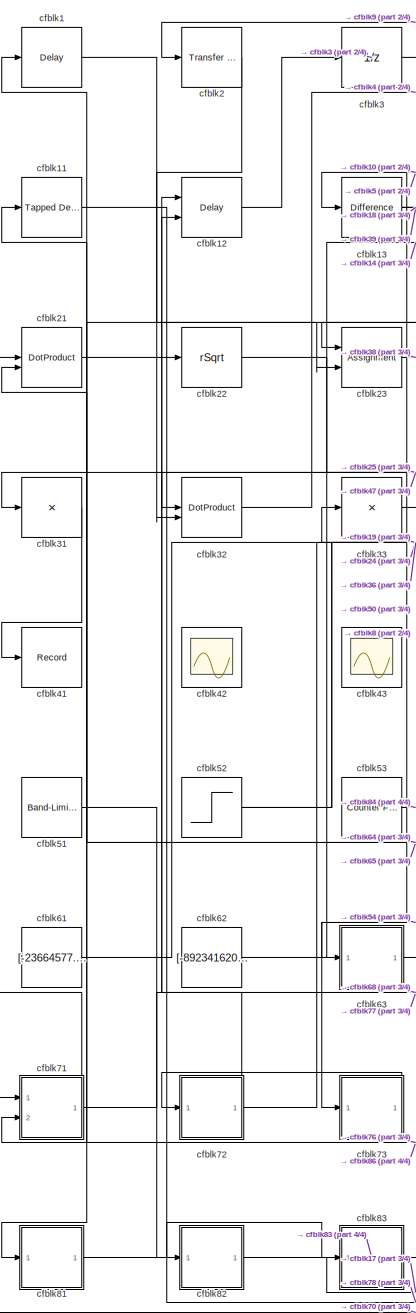
[diagram: root canvas - part 1/4, left side, full height]
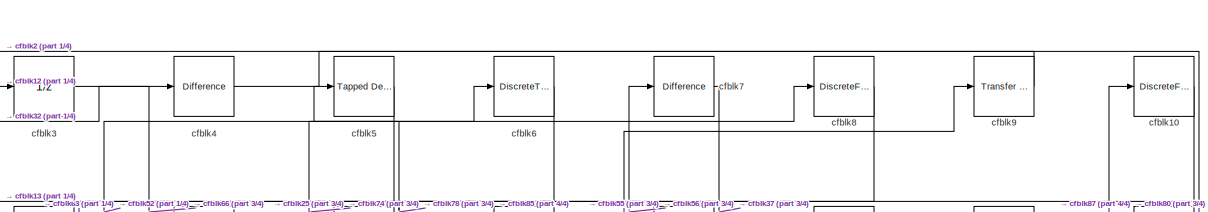
[diagram: root canvas - part 2/4, full width, top band]
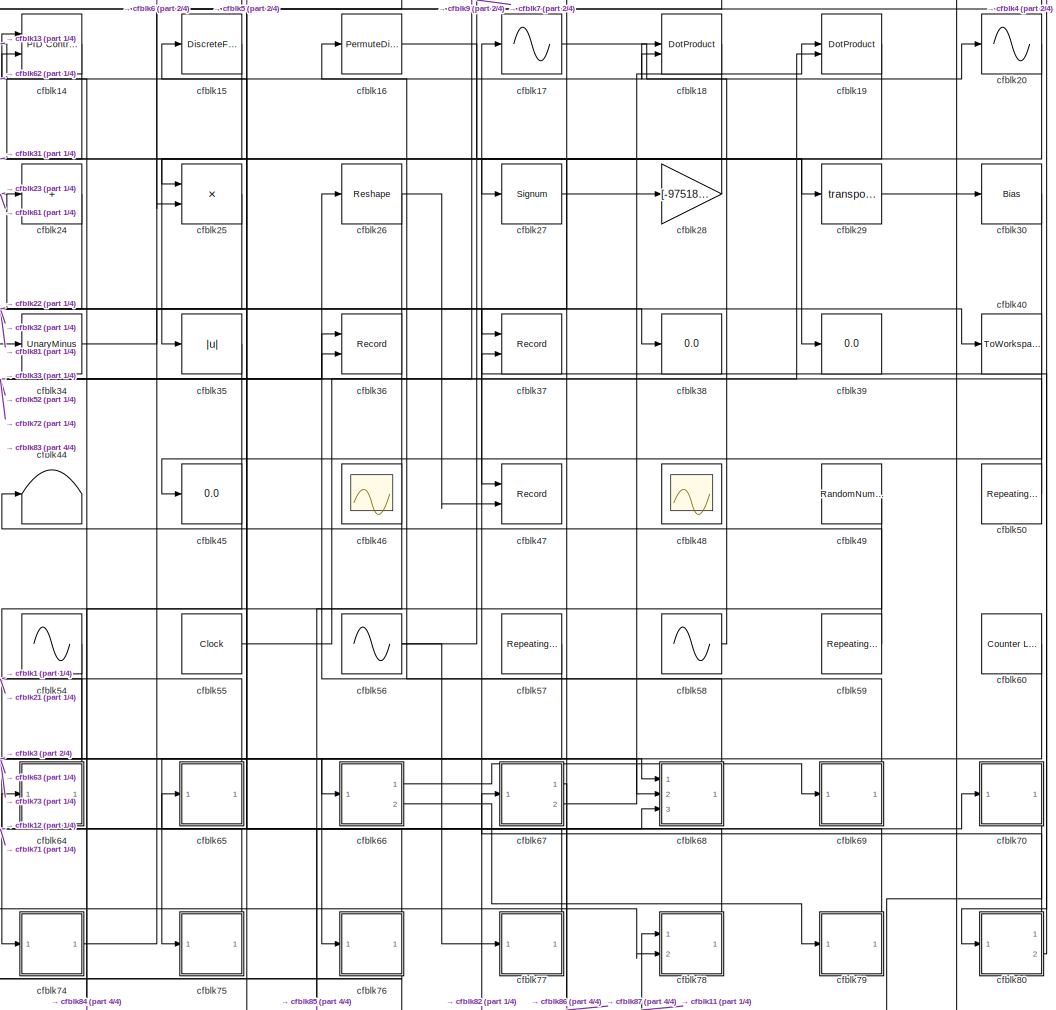
[diagram: root canvas - part 3/4, center side, full height]
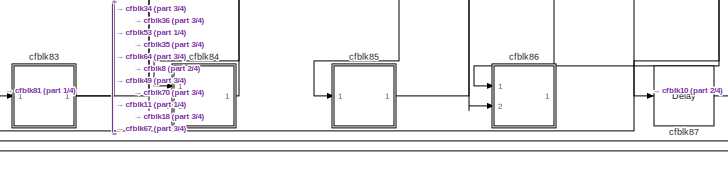
[diagram: root canvas - part 4/4, bottom center region]
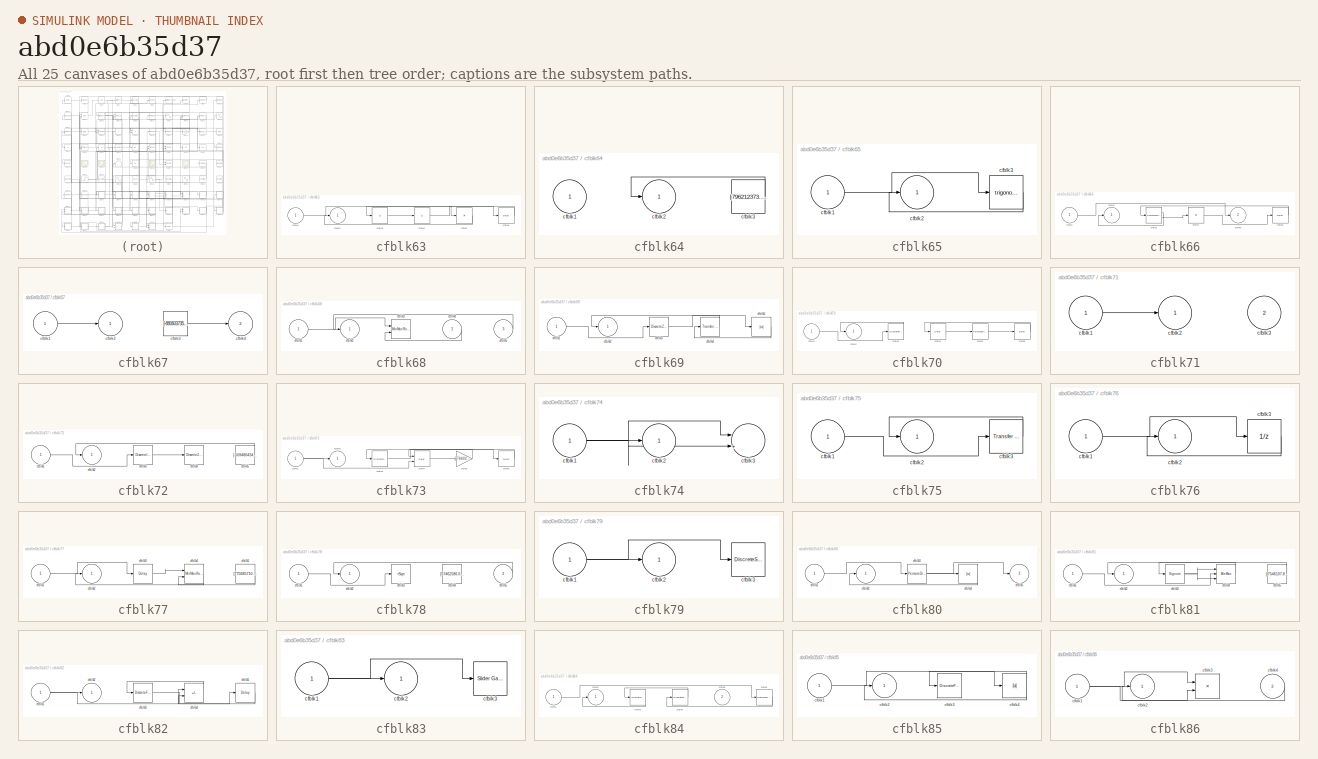
[diagram: thumbnail index - all 25 canvases of the model, root first then tree order]
MODEL slx_abd0e6b35d37
KIND model
CONFIG AbsTol = auto
CONFIG EnableMultiTasking = off
CONFIG FixedStep = auto
CONFIG MaxStep = auto
CONFIG MinStep = auto
CONFIG RelTol = 1e-3
CONFIG SampleTimeConstraint = Unconstrained
CONFIG SolverName = VariableStepAuto
CONFIG StartTime = 0.0
CONFIG StopTime = 10.0
BLOCK [Delay] cfblk1
  InputPortMap = u0
  Ports = [1, 1]
  SampleTime = 1
BLOCK [DiscreteFilter] cfblk10
  InputPortMap = u0
  Ports = [1, 1]
  SampleTime = 1
BLOCK [Reference] cfblk11  REF=simulink/Discrete/Tapped Delay
  Ports = [1, 1]
  SourceBlock = simulink/Discrete/Tapped Delay
  SourceProductBaseCode = SL
  SourceType = Tapped Delay Line
BLOCK [Delay] cfblk12
  DelayLengthSource = Input port
  InputPortMap = u0,p1
  Ports = [2, 1]
  SampleTime = 1
BLOCK [Reference] cfblk13  REF=simulink/Discrete/Difference
  Ports = [1, 1]
  SourceBlock = simulink/Discrete/Difference
  SourceProductBaseCode = SL
  SourceType = Difference
BLOCK [Reference] cfblk14  REF=slpidlib/PID Controller (2DOF)
  Ports = [2, 1]
  SourceBlock = slpidlib/PID Controller (2DOF)
  SourceProductBaseCode = SL
  SourceType = PID 2dof
BLOCK [DiscreteFir] cfblk15
  InputPortMap = u0
  OutputPortMap = o0
  Ports = [1, 1]
  SampleTime = 1
BLOCK [PermuteDimensions] cfblk16
BLOCK [Sin] cfblk17
  Ports = [1, 1]
  SampleTime = 0
  TimeSource = Use external signal
BLOCK [DotProduct] cfblk18
  OutDataTypeStr = Inherit: Inherit via internal rule
BLOCK [DotProduct] cfblk19
  OutDataTypeStr = Inherit: Inherit via internal rule
BLOCK [Reference] cfblk2  REF=simulink/Discrete/Transfer Fcn
Lead or Lag
  Ports = [1, 1]
  SourceBlock = simulink/Discrete/Transfer Fcn\nLead or Lag
  SourceProductBaseCode = SL
  SourceType = Lead or Lag Compensator
BLOCK [Sin] cfblk20
  Ports = [1, 1]
  SampleTime = 0
  TimeSource = Use external signal
BLOCK [DotProduct] cfblk21
  OutDataTypeStr = Inherit: Inherit via internal rule
BLOCK [Sqrt] cfblk22
  AlgorithmType = Newton-Raphson
  Operator = rSqrt
BLOCK [Assignment] cfblk23
  DiagnosticForDimensions = Warning
  IndexOptions = Index vector (dialog)
  Indices = 1
  OutputSizes = 1
  Ports = [2, 1]
BLOCK [Sum] cfblk24
  IconShape = rectangular
  Inputs = +
  Ports = [1, 1]
BLOCK [Product] cfblk25
  Ports = [2, 1]
BLOCK [Reshape] cfblk26
  Ports = [1, 1]
BLOCK [Signum] cfblk27
BLOCK [Gain] cfblk28
  Gain = [-975184491.261286]
BLOCK [Math] cfblk29
  Operator = transpose
  Ports = [1, 1]
BLOCK [UnitDelay] cfblk3
  HasFrameUpgradeWarning = on
BLOCK [Bias] cfblk30
  Bias = [569239717.268555]
  SaturateOnIntegerOverflow = off
BLOCK [Product] cfblk31
  Inputs = *
  Ports = [1, 1]
BLOCK [DotProduct] cfblk32
  OutDataTypeStr = Inherit: Inherit via internal rule
BLOCK [Product] cfblk33
  Inputs = *
  Ports = [1, 1]
BLOCK [UnaryMinus] cfblk34
BLOCK [Abs] cfblk35
  SaturateOnIntegerOverflow = off
BLOCK [Record] cfblk36
  CompatibilityTag = XY
  FileSettingsInternal = {"entries":[{"content":{"excelSettings":{"content":{},"type":"Streamout.ExcelSettings"}},"type":"Streamout.FileSettingStorage","uuid":"ca3dc4c8-2701-4d7d-a74f-2876e6223ae4"}],"packageUris":["http://schema.mathworks.com/mf0/streamout_blocks/R2020a"],"version":"1.0"}
  Layout = [1 1]
  Ports = [2]
  SignalsInternal = {"entries":[{"content":{"signals":[{"content":{"blockPath":["sampleModel185/cfblk36"],"channel":[],"dimensions":[1],"domain":"sampleModel185/cfblk36","lineColor":"#a2142f","plots":[1],"port":1,"sid":[""],"signalID":6898,"signalName":"cfblk83"},"type":"RecordBlkView.Signal","uuid":"58bfe43f-3551-43b7-ad72-a19eb20e3563"},{"content":{"blockPath":["sampleModel185/cfblk36"],"channel":[],"dimensions":[1...<+383ch>
  VisualizationBindings = {"xyplotplugin":{"info":[{"series":[{"bindingParametersList":[{"parameter":"X-Axis","signalID":6898,"signalName":"cfblk83"},{"parameter":"Y-Axis","signalID":6902,"signalName":"cfblk72"}],"seriesID":54905}],"subplotID":1}]}}
BLOCK [Record] cfblk37
  CompatibilityTag = XY
  FileSettingsInternal = {"entries":[{"content":{"excelSettings":{"content":{},"type":"Streamout.ExcelSettings"}},"type":"Streamout.FileSettingStorage","uuid":"82f9f1e3-03ac-43a3-94a3-1711c234262c"}],"packageUris":["http://schema.mathworks.com/mf0/streamout_blocks/R2020a"],"version":"1.0"}
  Layout = [1 1]
  Ports = [2]
  SignalsInternal = {"entries":[{"content":{"signals":[{"content":{"blockPath":["sampleModel185/cfblk37"],"channel":[],"dimensions":[1],"domain":"sampleModel185/cfblk37","lineColor":"#a2142f","plots":[1],"port":1,"sid":[""],"signalID":6906,"signalName":"cfblk7"},"type":"RecordBlkView.Signal","uuid":"5167ba9e-1071-42f9-84ca-5e71217b0861"},{"content":{"blockPath":["sampleModel185/cfblk37"],"channel":[],"dimensions":[1,...<+386ch>
  VisualizationBindings = {"xyplotplugin":{"info":[{"series":[{"bindingParametersList":[{"parameter":"X-Axis","signalID":6906,"signalName":"cfblk7"},{"parameter":"Y-Axis","signalID":6910,"signalName":"cfblk80:2"}],"seriesID":58278}],"subplotID":1}]}}
BLOCK [Display] cfblk38
  Decimation = 1
  Ports = [1]
BLOCK [Display] cfblk39
  Decimation = 1
  Ports = [1]
BLOCK [Reference] cfblk4  REF=simulink/Discrete/Difference
  Ports = [1, 1]
  SourceBlock = simulink/Discrete/Difference
  SourceProductBaseCode = SL
  SourceType = Difference
BLOCK [ToWorkspace] cfblk40
  FixptAsFi = on
  MaxDataPoints = inf
  Ports = [1]
  SampleTime = -1
  SaveFormat = Timeseries
  VariableName = jqvbwyd
BLOCK [Record] cfblk41
  FileSettingsInternal = {"entries":[{"content":{"excelSettings":{"content":{},"type":"Streamout.ExcelSettings"}},"type":"Streamout.FileSettingStorage","uuid":"d4802ba6-05bd-4ddf-8b8e-f99e9f8eb8d9"}],"packageUris":["http://schema.mathworks.com/mf0/streamout_blocks/R2020a"],"version":"1.0"}
  Ports = [1]
  SignalsInternal = {"entries":[{"content":{"signals":[{"content":{"blockPath":["sampleModel185/cfblk41"],"channel":[],"dimensions":[1],"domain":"sampleModel185/cfblk41","lineColor":"#77ac30","plots":[1],"port":1,"sid":[""],"signalID":6922,"signalName":"cfblk31"},"type":"RecordBlkView.Signal","uuid":"55ffb5aa-6727-4748-88e1-27207a70595c"}]},"type":"RecordBlkView.InputSignals","uuid":"a3da5140-dce7-4d31-869c-5c8311695...<+97ch>
  VisualizationBindings = {"sparklinesplugin":{"info":[{"bindingParametersList":[],"subplotID":1}]}}
BLOCK [Scope] cfblk42
  Floating = on
  NumInputPorts = 1
  Ports = []
BLOCK [Scope] cfblk43
  Floating = on
  NumInputPorts = 1
  Ports = []
BLOCK [Terminator] cfblk44
BLOCK [Display] cfblk45
  Decimation = 1
  Ports = [1]
BLOCK [Scope] cfblk46
  Floating = on
  NumInputPorts = 1
  Ports = []
BLOCK [Record] cfblk47
  CompatibilityTag = XY
  FileSettingsInternal = {"entries":[{"content":{"excelSettings":{"content":{},"type":"Streamout.ExcelSettings"}},"type":"Streamout.FileSettingStorage","uuid":"3a4413fc-1f12-4c68-bc16-d515da000100"}],"packageUris":["http://schema.mathworks.com/mf0/streamout_blocks/R2020a"],"version":"1.0"}
  Layout = [1 1]
  Ports = [2]
  SignalsInternal = {"entries":[{"content":{"signals":[{"content":{"blockPath":["sampleModel185/cfblk47"],"channel":[],"dimensions":[1],"domain":"sampleModel185/cfblk47","lineColor":"#a2142f","plots":[1],"port":1,"sid":[""],"signalID":6914,"signalName":"cfblk22"},"type":"RecordBlkView.Signal","uuid":"415c6105-a7e5-4e59-83e1-d8c7c00c7edb"},{"content":{"blockPath":["sampleModel185/cfblk47"],"channel":[],"dimensions":[1...<+383ch>
  VisualizationBindings = {"xyplotplugin":{"info":[{"series":[{"bindingParametersList":[{"parameter":"X-Axis","signalID":6914,"signalName":"cfblk22"},{"parameter":"Y-Axis","signalID":6918,"signalName":"cfblk26"}],"seriesID":35509}],"subplotID":1}]}}
BLOCK [Scope] cfblk48
  Floating = on
  NumInputPorts = 1
  Ports = []
BLOCK [RandomNumber] cfblk49
  Mean = [22057.459232]
  SampleTime = 0.1
  Seed = [908376181.000000]
  Variance = [14627.121236]
BLOCK [Reference] cfblk5  REF=simulink/Discrete/Tapped Delay
  Ports = [1, 1]
  SourceBlock = simulink/Discrete/Tapped Delay
  SourceProductBaseCode = SL
  SourceType = Tapped Delay Line
BLOCK [Reference] cfblk50  REF=simulink/Sources/Repeating
Sequence
Interpolated
  Ports = [0, 1]
  SourceBlock = simulink/Sources/Repeating\nSequence\nInterpolated
  SourceProductBaseCode = SL
  SourceType = Repeating Sequence Interpolated
BLOCK [Reference] cfblk51  REF=simulink/Sources/Band-Limited
White Noise
  Ports = [0, 1]
  SourceBlock = simulink/Sources/Band-Limited\nWhite Noise
  SourceProductBaseCode = SL
  SourceType = Band-Limited White Noise.
BLOCK [Step] cfblk52
  After = [-28942891.132493]
  Before = [-839865693.190419]
  SampleTime = 0
  Time = [21.000000]
BLOCK [Reference] cfblk53  REF=simulink/Sources/Counter
Free-Running
  Ports = [0, 1]
  SourceBlock = simulink/Sources/Counter\nFree-Running
  SourceProductBaseCode = SL
  SourceType = Counter Free-Running
BLOCK [Sin] cfblk54
  Amplitude = [-493649667.444895]
  Bias = [372403373.682373]
  Ports = [0, 1]
  SampleTime = 0
BLOCK [Clock] cfblk55
BLOCK [Sin] cfblk56
  Amplitude = [-692553084.611350]
  Bias = [847742899.509054]
  Ports = [0, 1]
  SampleTime = 0
BLOCK [Reference] cfblk57  REF=simulink/Sources/Repeating
Sequence
Interpolated
  Ports = [0, 1]
  SourceBlock = simulink/Sources/Repeating\nSequence\nInterpolated
  SourceProductBaseCode = SL
  SourceType = Repeating Sequence Interpolated
BLOCK [Sin] cfblk58
  Amplitude = [-442584007.207837]
  Bias = [832753916.372387]
  Ports = [0, 1]
  SampleTime = 0
BLOCK [Reference] cfblk59  REF=simulink/Sources/Repeating
Sequence
Stair
  Ports = [0, 1]
  SourceBlock = simulink/Sources/Repeating\nSequence\nStair
  SourceProductBaseCode = SL
  SourceType = Repeating Sequence Stair
BLOCK [DiscreteTransferFcn] cfblk6
  InputPortMap = u0
  Ports = [1, 1]
  SampleTime = 1
BLOCK [Reference] cfblk60  REF=simulink/Sources/Counter
Limited
  Ports = [0, 1]
  SourceBlock = simulink/Sources/Counter\nLimited
  SourceProductBaseCode = SL
  SourceType = Counter Limited
BLOCK [Constant] cfblk61
  SampleTime = 1
  Value = [-23664577.286086]
BLOCK [Constant] cfblk62
  SampleTime = 1
  Value = [-892341620.293338]
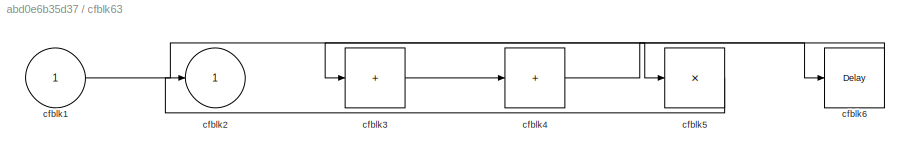
BLOCK [SubSystem] cfblk63
  Ports = [1, 1]
  RequestExecContextInheritance = off
BLOCK [Inport] cfblk63/cfblk1
BLOCK [Outport] cfblk63/cfblk2
BLOCK [Sum] cfblk63/cfblk3
  IconShape = rectangular
  Inputs = +
  Ports = [1, 1]
BLOCK [Sum] cfblk63/cfblk4
  IconShape = rectangular
  Inputs = +
  Ports = [1, 1]
BLOCK [Product] cfblk63/cfblk5
  Inputs = *
  Ports = [1, 1]
BLOCK [Delay] cfblk63/cfblk6
  InputPortMap = u0
  Ports = [1, 1]
  SampleTime = 1
BLOCK [SubSystem] cfblk64
  Ports = [1, 1]
  RequestExecContextInheritance = off
BLOCK [Inport] cfblk64/cfblk1
BLOCK [Outport] cfblk64/cfblk2
BLOCK [Constant] cfblk64/cfblk3
  SampleTime = 1
  Value = [796212373.254412]
BLOCK [SubSystem] cfblk65
  Ports = [1, 1]
  RequestExecContextInheritance = off
BLOCK [Inport] cfblk65/cfblk1
BLOCK [Outport] cfblk65/cfblk2
BLOCK [Trigonometry] cfblk65/cfblk3
  Ports = [1, 1]
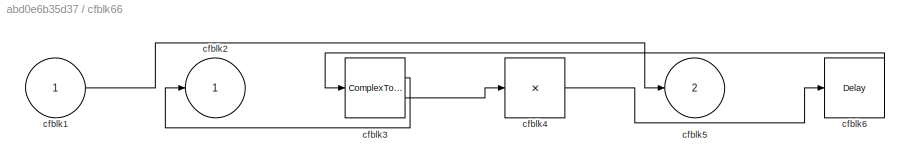
BLOCK [SubSystem] cfblk66
  Ports = [1, 2]
  RequestExecContextInheritance = off
BLOCK [Inport] cfblk66/cfblk1
BLOCK [Outport] cfblk66/cfblk2
BLOCK [ComplexToMagnitudeAngle] cfblk66/cfblk3
  Ports = [1, 2]
BLOCK [Product] cfblk66/cfblk4
  Inputs = *
  Ports = [1, 1]
BLOCK [Outport] cfblk66/cfblk5
  Port = 2
BLOCK [Delay] cfblk66/cfblk6
  InputPortMap = u0
  Ports = [1, 1]
  SampleTime = 1
BLOCK [SubSystem] cfblk67
  Ports = [1, 2]
  RequestExecContextInheritance = off
BLOCK [Inport] cfblk67/cfblk1
BLOCK [Outport] cfblk67/cfblk2
BLOCK [Constant] cfblk67/cfblk3
  SampleTime = 1
  Value = [-880603735.218664]
BLOCK [Outport] cfblk67/cfblk4
  Port = 2
BLOCK [SubSystem] cfblk68
  Ports = [3, 1]
  RequestExecContextInheritance = off
BLOCK [Inport] cfblk68/cfblk1
BLOCK [Outport] cfblk68/cfblk2
BLOCK [Reference] cfblk68/cfblk3  REF=simulink/Math
Operations/MinMax
Running
Resettable
  Ports = [2, 1]
  SourceBlock = simulink/Math\nOperations/MinMax\nRunning\nResettable
  SourceProductBaseCode = SL
  SourceType = MinMax Running Resettable
BLOCK [Inport] cfblk68/cfblk4
  Port = 2
BLOCK [Inport] cfblk68/cfblk5
  Port = 3
BLOCK [SubSystem] cfblk69
  Ports = [1, 1]
  RequestExecContextInheritance = off
BLOCK [Inport] cfblk69/cfblk1
BLOCK [Outport] cfblk69/cfblk2
BLOCK [DiscreteZeroPole] cfblk69/cfblk3
  Gain = 1
  Poles = [0 0.5]
BLOCK [Reference] cfblk69/cfblk4  REF=simulink/Discrete/Transfer Fcn
Real Zero
  Ports = [1, 1]
  SourceBlock = simulink/Discrete/Transfer Fcn\nReal Zero
  SourceProductBaseCode = SL
  SourceType = Transfer Fcn Real Zero
BLOCK [Abs] cfblk69/cfblk5
  SaturateOnIntegerOverflow = off
BLOCK [Reference] cfblk7  REF=simulink/Discrete/Difference
  Ports = [1, 1]
  SourceBlock = simulink/Discrete/Difference
  SourceProductBaseCode = SL
  SourceType = Difference
BLOCK [SubSystem] cfblk70
  Ports = [1, 1]
  RequestExecContextInheritance = off
BLOCK [Inport] cfblk70/cfblk1
BLOCK [Outport] cfblk70/cfblk2
BLOCK [DiscreteFir] cfblk70/cfblk3
  InputPortMap = u0
  OutputPortMap = o0
  Ports = [1, 1]
  SampleTime = 1
BLOCK [Delay] cfblk70/cfblk4
  InputPortMap = u0
  Ports = [1, 1]
  SampleTime = 1
BLOCK [PermuteDimensions] cfblk70/cfblk5
BLOCK [Delay] cfblk70/cfblk6
  InputPortMap = u0
  Ports = [1, 1]
  SampleTime = 1
BLOCK [SubSystem] cfblk71
  Ports = [2, 1]
  RequestExecContextInheritance = off
BLOCK [Inport] cfblk71/cfblk1
BLOCK [Outport] cfblk71/cfblk2
BLOCK [Inport] cfblk71/cfblk3
  Port = 2
BLOCK [SubSystem] cfblk72
  Ports = [1, 1]
  RequestExecContextInheritance = off
BLOCK [Inport] cfblk72/cfblk1
BLOCK [Outport] cfblk72/cfblk2
BLOCK [DiscreteIntegrator] cfblk72/cfblk3
  ICPrevOutput = DiscIntNeverNeededParam
  ICPrevScaledInput = DiscIntNeverNeededParam
  InitialConditionSetting = Auto
  Ports = [1, 1]
BLOCK [DiscreteZeroPole] cfblk72/cfblk4
  Gain = 1
  Poles = [0 0.5]
BLOCK [Constant] cfblk72/cfblk5
  SampleTime = 1
  Value = [-509480434.597613]
BLOCK [SubSystem] cfblk73
  Ports = [1, 1]
  RequestExecContextInheritance = off
BLOCK [Inport] cfblk73/cfblk1
BLOCK [Outport] cfblk73/cfblk2
BLOCK [DiscreteTransferFcn] cfblk73/cfblk3
  InputPortMap = u0
  Ports = [1, 1]
  SampleTime = 1
BLOCK [Delay] cfblk73/cfblk4
  InputPortMap = u0,e6
  Ports = [2, 1]
  SampleTime = 1
  ShowEnablePort = on
BLOCK [Gain] cfblk73/cfblk5
  Gain = [-766029483.625070]
BLOCK [Delay] cfblk73/cfblk6
  InputPortMap = u0
  Ports = [1, 1]
  SampleTime = 1
BLOCK [SubSystem] cfblk74
  Ports = [1, 1]
  RequestExecContextInheritance = off
BLOCK [Inport] cfblk74/cfblk1
BLOCK [Outport] cfblk74/cfblk2
BLOCK [Sum] cfblk74/cfblk3
  Inputs = |++
  Ports = [2, 1]
BLOCK [SubSystem] cfblk75
  Ports = [1, 1]
  RequestExecContextInheritance = off
BLOCK [Inport] cfblk75/cfblk1
BLOCK [Outport] cfblk75/cfblk2
BLOCK [Reference] cfblk75/cfblk3  REF=simulink/Discrete/Transfer Fcn
Lead or Lag
  Ports = [1, 1]
  SourceBlock = simulink/Discrete/Transfer Fcn\nLead or Lag
  SourceProductBaseCode = SL
  SourceType = Lead or Lag Compensator
BLOCK [SubSystem] cfblk76
  Ports = [1, 1]
  RequestExecContextInheritance = off
BLOCK [Inport] cfblk76/cfblk1
BLOCK [Outport] cfblk76/cfblk2
BLOCK [UnitDelay] cfblk76/cfblk3
  HasFrameUpgradeWarning = on
BLOCK [SubSystem] cfblk77
  Ports = [1, 1]
  RequestExecContextInheritance = off
BLOCK [Inport] cfblk77/cfblk1
BLOCK [Outport] cfblk77/cfblk2
BLOCK [Delay] cfblk77/cfblk3
  InputPortMap = u0
  Ports = [1, 1]
  SampleTime = 1
BLOCK [Reference] cfblk77/cfblk4  REF=simulink/Math
Operations/MinMax
Running
Resettable
  Ports = [2, 1]
  SourceBlock = simulink/Math\nOperations/MinMax\nRunning\nResettable
  SourceProductBaseCode = SL
  SourceType = MinMax Running Resettable
BLOCK [Constant] cfblk77/cfblk5
  SampleTime = 1
  Value = [775685710.969135]
BLOCK [SubSystem] cfblk78
  Ports = [2, 1]
  RequestExecContextInheritance = off
BLOCK [Inport] cfblk78/cfblk1
BLOCK [Outport] cfblk78/cfblk2
BLOCK [Sqrt] cfblk78/cfblk3
  AlgorithmType = Newton-Raphson
  Operator = rSqrt
BLOCK [Constant] cfblk78/cfblk4
  SampleTime = 1
  Value = [57462586.074869]
BLOCK [Inport] cfblk78/cfblk5
  Port = 2
BLOCK [SubSystem] cfblk79
  Ports = [1, 1]
  RequestExecContextInheritance = off
BLOCK [Inport] cfblk79/cfblk1
BLOCK [Outport] cfblk79/cfblk2
BLOCK [DiscreteStateSpace] cfblk79/cfblk3
BLOCK [DiscreteFir] cfblk8
  InputPortMap = u0
  OutputPortMap = o0
  Ports = [1, 1]
  SampleTime = 1
BLOCK [SubSystem] cfblk80
  Ports = [1, 2]
  RequestExecContextInheritance = off
BLOCK [Inport] cfblk80/cfblk1
BLOCK [Outport] cfblk80/cfblk2
BLOCK [PermuteDimensions] cfblk80/cfblk3
BLOCK [Abs] cfblk80/cfblk4
  SaturateOnIntegerOverflow = off
BLOCK [Outport] cfblk80/cfblk5
  Port = 2
BLOCK [SubSystem] cfblk81
  Ports = [1, 1]
  RequestExecContextInheritance = off
BLOCK [Inport] cfblk81/cfblk1
BLOCK [Outport] cfblk81/cfblk2
BLOCK [Signum] cfblk81/cfblk3
BLOCK [MinMax] cfblk81/cfblk4
  Function = max
  Inputs = 3
  Ports = [3, 1]
BLOCK [Constant] cfblk81/cfblk5
  SampleTime = 1
  Value = [-7546107.891919]
BLOCK [SubSystem] cfblk82
  Ports = [1, 1]
  RequestExecContextInheritance = off
BLOCK [Inport] cfblk82/cfblk1
BLOCK [Outport] cfblk82/cfblk2
BLOCK [DiscreteFilter] cfblk82/cfblk3
  InputPortMap = u0
  Ports = [1, 1]
  SampleTime = 1
BLOCK [Sum] cfblk82/cfblk4
  IconShape = rectangular
  Inputs = --
  Ports = [2, 1]
BLOCK [Delay] cfblk82/cfblk5
  InputPortMap = u0
  Ports = [1, 1]
  SampleTime = 1
BLOCK [SubSystem] cfblk83
  Ports = [1, 1]
  RequestExecContextInheritance = off
BLOCK [Inport] cfblk83/cfblk1
BLOCK [Outport] cfblk83/cfblk2
BLOCK [Reference] cfblk83/cfblk3  REF=simulink/Math
Operations/Slider
Gain
  Ports = [1, 1]
  SourceBlock = simulink/Math\nOperations/Slider\nGain
  SourceProductBaseCode = SL
  SourceType = Slider Gain
BLOCK [SubSystem] cfblk84
  Ports = [2, 1]
  RequestExecContextInheritance = off
BLOCK [Inport] cfblk84/cfblk1
BLOCK [Outport] cfblk84/cfblk2
BLOCK [DiscreteIntegrator] cfblk84/cfblk3
  ICPrevOutput = DiscIntNeverNeededParam
  ICPrevScaledInput = DiscIntNeverNeededParam
  InitialConditionSetting = Auto
  Ports = [1, 1]
BLOCK [DiscreteZeroPole] cfblk84/cfblk4
  Gain = 1
  Poles = [0 0.5]
BLOCK [Inport] cfblk84/cfblk5
  Port = 2
BLOCK [DataTypeConversion] cfblk84/cfblk6
  RndMeth = Floor
  SaturateOnIntegerOverflow = off
BLOCK [SubSystem] cfblk85
  Ports = [1, 1]
  RequestExecContextInheritance = off
BLOCK [Inport] cfblk85/cfblk1
BLOCK [Outport] cfblk85/cfblk2
BLOCK [DiscreteFir] cfblk85/cfblk3
  InputPortMap = u0
  OutputPortMap = o0
  Ports = [1, 1]
  SampleTime = 1
BLOCK [Abs] cfblk85/cfblk4
  SaturateOnIntegerOverflow = off
BLOCK [SubSystem] cfblk86
  Ports = [2, 1]
  RequestExecContextInheritance = off
BLOCK [Inport] cfblk86/cfblk1
BLOCK [Outport] cfblk86/cfblk2
BLOCK [Product] cfblk86/cfblk3
  Inputs = **
  Ports = [2, 1]
BLOCK [Inport] cfblk86/cfblk4
  Port = 2
BLOCK [Delay] cfblk87
  InputPortMap = u0
  Ports = [1, 1]
  SampleTime = 1
BLOCK [Reference] cfblk9  REF=simulink/Discrete/Transfer Fcn
Real Zero
  Ports = [1, 1]
  SourceBlock = simulink/Discrete/Transfer Fcn\nReal Zero
  SourceProductBaseCode = SL
  SourceType = Transfer Fcn Real Zero
LINE cfblk10:1 -> cfblk13:1
LINE cfblk11:1 -> cfblk78:1
LINE cfblk12:1 -> cfblk3:1
NET cfblk13:1 -> cfblk18:2, cfblk39:1, cfblk78:2
LINE cfblk14:1 -> cfblk31:1
LINE cfblk15:1 -> cfblk35:1
LINE cfblk16:1 -> cfblk29:1
LINE cfblk17:1 -> cfblk20:1
LINE cfblk18:1 -> cfblk87:1
LINE cfblk19:1 -> cfblk23:1
LINE cfblk1:1 -> cfblk23:2
LINE cfblk20:1 -> cfblk27:1
LINE cfblk21:1 -> cfblk12:1
LINE cfblk22:1 -> cfblk47:1
LINE cfblk23:1 -> cfblk38:1
LINE cfblk24:1 -> cfblk81:1
LINE cfblk25:1 -> cfblk32:1
NET cfblk26:1 -> cfblk47:2, cfblk74:1
LINE cfblk27:1 -> cfblk28:1
LINE cfblk28:1 -> cfblk25:1
LINE cfblk29:1 -> cfblk30:1
LINE cfblk2:1 -> cfblk32:2
LINE cfblk30:1 -> cfblk45:1
LINE cfblk31:1 -> cfblk41:1
LINE cfblk32:1 -> cfblk4:1
LINE cfblk33:1 -> cfblk68:2
LINE cfblk34:1 -> cfblk40:1
LINE cfblk35:1 -> cfblk84:1
LINE cfblk3:1 -> cfblk66:1
LINE cfblk49:1 -> cfblk86:2
LINE cfblk4:1 -> cfblk80:1
LINE cfblk50:1 -> cfblk33:1
LINE cfblk51:1 -> cfblk82:1
NET cfblk52:1 -> cfblk19:2, cfblk8:1
LINE cfblk53:1 -> cfblk84:2
LINE cfblk54:1 -> cfblk73:1
LINE cfblk55:1 -> cfblk9:1
NET cfblk56:1 -> cfblk77:1, cfblk7:1
LINE cfblk57:1 -> cfblk75:1
LINE cfblk58:1 -> cfblk18:1
LINE cfblk59:1 -> cfblk14:2
LINE cfblk5:1 -> cfblk63:1
LINE cfblk60:1 -> cfblk76:1
LINE cfblk61:1 -> cfblk24:1
LINE cfblk62:1 -> cfblk14:1
LINE cfblk63/cfblk1:1 -> cfblk63/cfblk5:1
LINE cfblk63/cfblk3:1 -> cfblk63/cfblk4:1
LINE cfblk63/cfblk4:1 -> cfblk63/cfblk6:1
LINE cfblk63/cfblk5:1 -> cfblk63/cfblk2:1
LINE cfblk63/cfblk6:1 -> cfblk63/cfblk3:1
LINE cfblk63:1 -> cfblk68:1
LINE cfblk64/cfblk3:1 -> cfblk64/cfblk2:1
LINE cfblk64:1 -> cfblk21:2
LINE cfblk65/cfblk1:1 -> cfblk65/cfblk3:1
LINE cfblk65/cfblk3:1 -> cfblk65/cfblk2:1
LINE cfblk65:1 -> cfblk1:1
LINE cfblk66/cfblk1:1 -> cfblk66/cfblk5:1
LINE cfblk66/cfblk3:1 -> cfblk66/cfblk2:1
LINE cfblk66/cfblk3:2 -> cfblk66/cfblk4:1
LINE cfblk66/cfblk4:1 -> cfblk66/cfblk6:1
LINE cfblk66/cfblk6:1 -> cfblk66/cfblk3:1
LINE cfblk66:1 -> cfblk69:1
LINE cfblk66:2 -> cfblk79:1
LINE cfblk67/cfblk1:1 -> cfblk67/cfblk2:1
LINE cfblk67/cfblk3:1 -> cfblk67/cfblk4:1
LINE cfblk67:1 -> cfblk86:1
LINE cfblk67:2 -> cfblk19:1
LINE cfblk68/cfblk1:1 -> cfblk68/cfblk3:1
LINE cfblk68/cfblk4:1 -> cfblk68/cfblk3:2
LINE cfblk68/cfblk5:1 -> cfblk68/cfblk2:1
LINE cfblk68:1 -> cfblk16:1
LINE cfblk69/cfblk1:1 -> cfblk69/cfblk3:1
LINE cfblk69/cfblk3:1 -> cfblk69/cfblk5:1
LINE cfblk69/cfblk4:1 -> cfblk69/cfblk2:1
LINE cfblk69/cfblk5:1 -> cfblk69/cfblk4:1
LINE cfblk69:1 -> cfblk26:1
LINE cfblk6:1 -> cfblk25:2
LINE cfblk70/cfblk1:1 -> cfblk70/cfblk3:1
LINE cfblk70/cfblk3:1 -> cfblk70/cfblk2:1
LINE cfblk70/cfblk4:1 -> cfblk70/cfblk5:1
LINE cfblk70/cfblk5:1 -> cfblk70/cfblk6:1
LINE cfblk70/cfblk6:1 -> cfblk70/cfblk4:1
LINE cfblk70:1 -> cfblk71:1
LINE cfblk71/cfblk1:1 -> cfblk71/cfblk2:1
NET cfblk71:1 -> cfblk21:1, cfblk68:3
LINE cfblk72/cfblk1:1 -> cfblk72/cfblk3:1
LINE cfblk72/cfblk3:1 -> cfblk72/cfblk4:1
LINE cfblk72/cfblk5:1 -> cfblk72/cfblk2:1
NET cfblk72:1 -> cfblk22:1, cfblk36:2
NET cfblk73/cfblk1:1 -> cfblk73/cfblk2:1, cfblk73/cfblk4:2
LINE cfblk73/cfblk3:1 -> cfblk73/cfblk6:1
LINE cfblk73/cfblk4:1 -> cfblk73/cfblk5:1
LINE cfblk73/cfblk5:1 -> cfblk73/cfblk3:1
LINE cfblk73/cfblk6:1 -> cfblk73/cfblk4:1
LINE cfblk73:1 -> cfblk72:1
NET cfblk74/cfblk1:1 -> cfblk74/cfblk2:1, cfblk74/cfblk3:1, cfblk74/cfblk3:2
LINE cfblk74:1 -> cfblk6:1
LINE cfblk75/cfblk1:1 -> cfblk75/cfblk3:1
LINE cfblk75/cfblk3:1 -> cfblk75/cfblk2:1
LINE cfblk75:1 -> cfblk65:1
LINE cfblk76/cfblk1:1 -> cfblk76/cfblk3:1
LINE cfblk76/cfblk3:1 -> cfblk76/cfblk2:1
NET cfblk76:1 -> cfblk15:1, cfblk71:2
LINE cfblk77/cfblk1:1 -> cfblk77/cfblk3:1
LINE cfblk77/cfblk3:1 -> cfblk77/cfblk4:1
LINE cfblk77/cfblk4:1 -> cfblk77/cfblk2:1
LINE cfblk77/cfblk5:1 -> cfblk77/cfblk4:2
LINE cfblk77:1 -> cfblk12:2
LINE cfblk78/cfblk1:1 -> cfblk78/cfblk3:1
LINE cfblk78/cfblk5:1 -> cfblk78/cfblk2:1
LINE cfblk78:1 -> cfblk5:1
NET cfblk79/cfblk1:1 -> cfblk79/cfblk2:1, cfblk79/cfblk3:1
LINE cfblk79:1 -> cfblk44:1
LINE cfblk7:1 -> cfblk37:1
LINE cfblk80/cfblk1:1 -> cfblk80/cfblk3:1
NET cfblk80/cfblk3:1 -> cfblk80/cfblk4:1, cfblk80/cfblk5:1
LINE cfblk80/cfblk4:1 -> cfblk80/cfblk2:1
LINE cfblk80:1 -> cfblk67:1
LINE cfblk80:2 -> cfblk37:2
LINE cfblk81/cfblk1:1 -> cfblk81/cfblk4:2
NET cfblk81/cfblk3:1 -> cfblk81/cfblk4:1, cfblk81/cfblk4:3
LINE cfblk81/cfblk4:1 -> cfblk81/cfblk2:1
LINE cfblk81/cfblk5:1 -> cfblk81/cfblk3:1
LINE cfblk81:1 -> cfblk83:1
NET cfblk82/cfblk1:1 -> cfblk82/cfblk2:1, cfblk82/cfblk4:1
LINE cfblk82/cfblk3:1 -> cfblk82/cfblk5:1
LINE cfblk82/cfblk4:1 -> cfblk82/cfblk3:1
LINE cfblk82/cfblk5:1 -> cfblk82/cfblk4:2
LINE cfblk82:1 -> cfblk17:1
NET cfblk83/cfblk1:1 -> cfblk83/cfblk2:1, cfblk83/cfblk3:1
NET cfblk83:1 -> cfblk34:1, cfblk36:1
LINE cfblk84/cfblk1:1 -> cfblk84/cfblk6:1
LINE cfblk84/cfblk3:1 -> cfblk84/cfblk2:1
LINE cfblk84/cfblk4:1 -> cfblk84/cfblk3:1
LINE cfblk84/cfblk6:1 -> cfblk84/cfblk4:1
LINE cfblk84:1 -> cfblk64:1
LINE cfblk85/cfblk1:1 -> cfblk85/cfblk4:1
NET cfblk85/cfblk4:1 -> cfblk85/cfblk2:1, cfblk85/cfblk3:1
LINE cfblk85:1 -> cfblk70:1
NET cfblk86/cfblk1:1 -> cfblk86/cfblk3:1, cfblk86/cfblk3:2
LINE cfblk86/cfblk4:1 -> cfblk86/cfblk2:1
LINE cfblk86:1 -> cfblk11:1
LINE cfblk87:1 -> cfblk10:1
LINE cfblk8:1 -> cfblk85:1
LINE cfblk9:1 -> cfblk2:1
note: NET lines group one-source signal fan-out (src -> all destinations, sorted); 1:1 wires keep LINE
